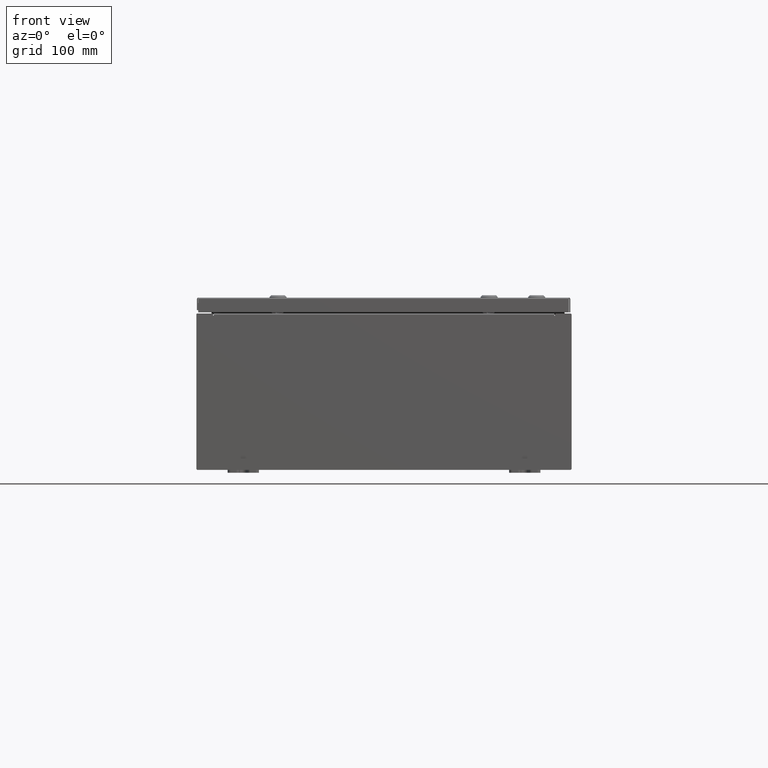
[diagram: clean part render]
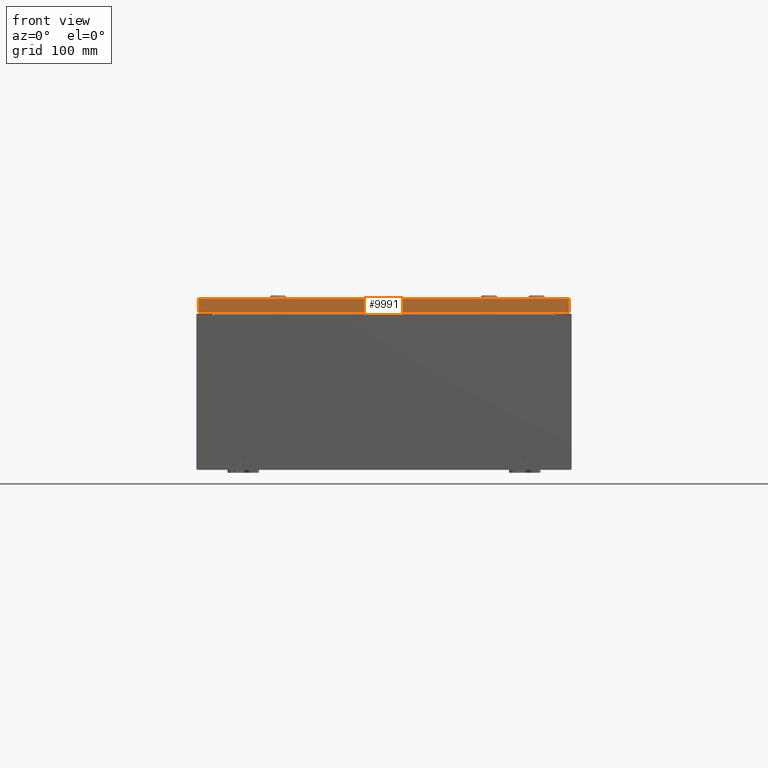
[diagram: same view with one face highlighted and labeled with its STEP entity id]
A machine part, front view. The second image highlights one B-rep face of the part: STEP entity #9991.
In plain terms, the highlighted planar face has unit normal (-0, 1, -0).
Its self-contained STEP definition (entity closure, byte-faithful):
#2125 = ORIENTED_EDGE ( 'NONE', *, *, #6245, .F. ) ;
#2948 = VERTEX_POINT ( 'NONE', #46138 ) ;
#4918 = VERTEX_POINT ( 'NONE', #16265 ) ;
#6245 = EDGE_CURVE ( 'NONE', #2948, #25946, #47979, .T. ) ;
#6907 = CARTESIAN_POINT ( 'NONE',  ( 11.84865786437626900, -17.93750000000000000, -0.9376999999999997600 ) ) ;
#7359 = DIRECTION ( 'NONE',  ( 0.0000000000000000000, -2.532419924601866100E-015, -1.000000000000000000 ) ) ;
#8102 = CARTESIAN_POINT ( 'NONE',  ( 11.84865786437626800, -17.93749999999999600, -0.08770000000000008300 ) ) ;
#8414 = VECTOR ( 'NONE', #20898, 39.37007874015748100 ) ;
#9991 = ADVANCED_FACE ( 'NONE', ( #20563 ), #53666, .F. ) ;
#14054 = CARTESIAN_POINT ( 'NONE',  ( 5.717464428787660300E-030, -17.93749999999999600, 4.568609605355754200E-014 ) ) ;
#16265 = CARTESIAN_POINT ( 'NONE',  ( -11.84865786437626800, -17.93750000000000000, -0.9376999999999967600 ) ) ;
#16375 = CARTESIAN_POINT ( 'NONE',  ( 11.84865786437626900, -17.93749999999999600, -0.07469999999999980800 ) ) ;
#17224 = VECTOR ( 'NONE', #25981, 39.37007874015748100 ) ;
#20563 = FACE_OUTER_BOUND ( 'NONE', #41993, .T. ) ;
#20898 = DIRECTION ( 'NONE',  ( 1.000000000000000000, 3.187436615352006600E-031, -7.980458346197363700E-046 ) ) ;
#20974 = CARTESIAN_POINT ( 'NONE',  ( 11.93750000000000000, -17.93750000000000000, -0.9376999999999997600 ) ) ;
#22097 = CARTESIAN_POINT ( 'NONE',  ( 11.93750000000000000, -17.93749999999999600, -0.08770000000000008300 ) ) ;
#22118 = CARTESIAN_POINT ( 'NONE',  ( -11.84865786437626900, -17.93749999999999600, 4.568609605355754200E-014 ) ) ;
#23040 = VECTOR ( 'NONE', #26153, 39.37007874015748100 ) ;
#24005 = DIRECTION ( 'NONE',  ( -3.187436615352006200E-031, 1.000000000000000000, -2.532419924601866100E-015 ) ) ;
#25946 = VERTEX_POINT ( 'NONE', #8102 ) ;
#25981 = DIRECTION ( 'NONE',  ( -1.000000000000000000, 4.379057701015054300E-047, 1.258652478756310100E-016 ) ) ;
#26153 = DIRECTION ( 'NONE',  ( -0.0000000000000000000, -2.532419924601866100E-015, -1.000000000000000000 ) ) ;
#27308 = LINE ( 'NONE', #20974, #17224 ) ;
#27570 = LINE ( 'NONE', #22118, #43053 ) ;
#37057 = EDGE_CURVE ( 'NONE', #25946, #59635, #61104, .T. ) ;
#37927 = ORIENTED_EDGE ( 'NONE', *, *, #46419, .F. ) ;
#41993 = EDGE_LOOP ( 'NONE', ( #2125, #44025, #37927, #48108 ) ) ;
#43053 = VECTOR ( 'NONE', #7359, 39.37007874015748100 ) ;
#44025 = ORIENTED_EDGE ( 'NONE', *, *, #55077, .T. ) ;
#46138 = CARTESIAN_POINT ( 'NONE',  ( -11.84865786437626800, -17.93749999999999600, -0.08770000000000008300 ) ) ;
#46419 = EDGE_CURVE ( 'NONE', #59635, #4918, #27308, .T. ) ;
#47979 = LINE ( 'NONE', #22097, #8414 ) ;
#48108 = ORIENTED_EDGE ( 'NONE', *, *, #37057, .F. ) ;
#53666 = PLANE ( 'NONE',  #58159 ) ;
#55077 = EDGE_CURVE ( 'NONE', #2948, #4918, #27570, .T. ) ;
#58159 = AXIS2_PLACEMENT_3D ( 'NONE', #14054, #24005, #58681 ) ;
#58681 = DIRECTION ( 'NONE',  ( 0.0000000000000000000, 2.532419924601866100E-015, 1.000000000000000000 ) ) ;
#59635 = VERTEX_POINT ( 'NONE', #6907 ) ;
#61104 = LINE ( 'NONE', #16375, #23040 ) ;